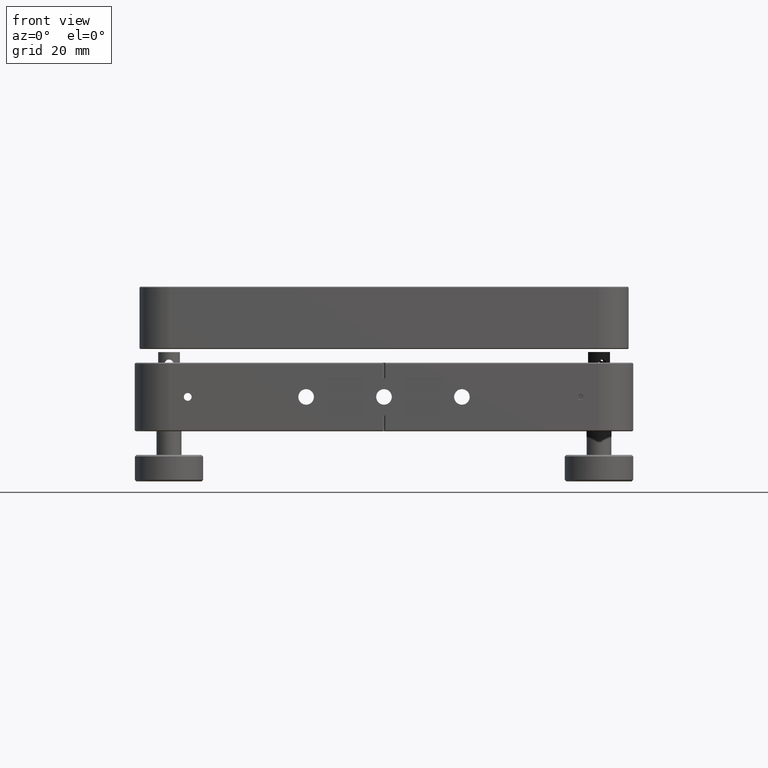
[diagram: clean part render]
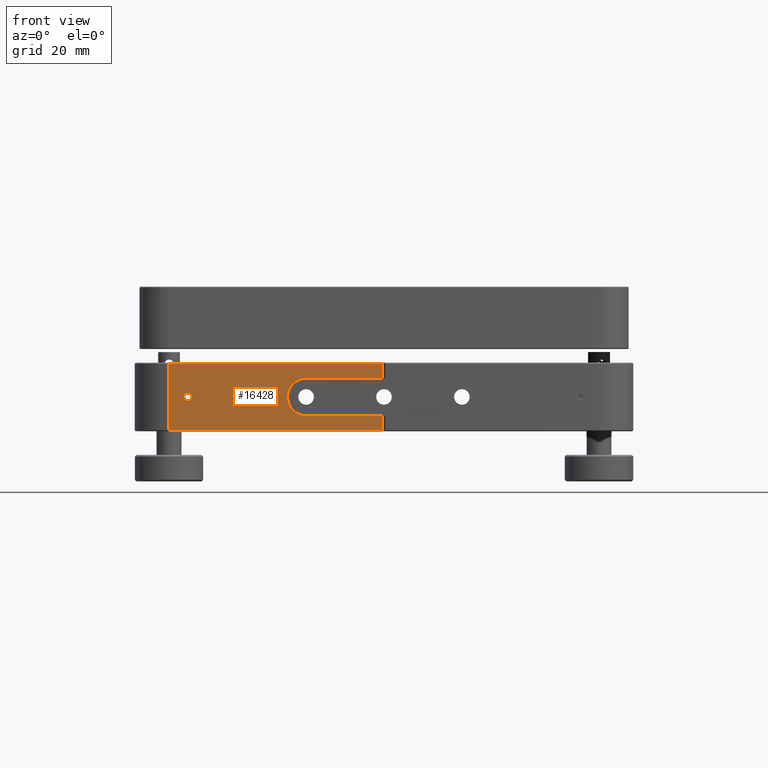
[diagram: same view with one face highlighted and labeled with its STEP entity id]
A machine part, front view. The second image highlights one B-rep face of the part: STEP entity #16428.
In plain terms, the highlighted planar face has unit normal (0, 1, 0).
Its self-contained STEP definition (entity closure, byte-faithful):
#104 = VERTEX_POINT ( 'NONE', #11621 ) ;
#155 = CARTESIAN_POINT ( 'NONE',  ( -0.5000000000000073275, -80.00000000000001421, 6.000000000000002665 ) ) ;
#356 = DIRECTION ( 'NONE',  ( 0.000000000000000000, -1.000000000000000000, 0.000000000000000000 ) ) ;
#378 = CARTESIAN_POINT ( 'NONE',  ( -25.00000000000000000, -80.00000000000001421, 6.000000000000007105 ) ) ;
#1159 = DIRECTION ( 'NONE',  ( -1.000000000000000000, 0.000000000000000000, -3.122502256758253263E-16 ) ) ;
#1169 = CIRCLE ( 'NONE', #10317, 1.249999999999994227 ) ;
#1380 = LINE ( 'NONE', #12304, #12335 ) ;
#1571 = ORIENTED_EDGE ( 'NONE', *, *, #12269, .F. ) ;
#1672 = VERTEX_POINT ( 'NONE', #2322 ) ;
#1827 = AXIS2_PLACEMENT_3D ( 'NONE', #11184, #356, #8418 ) ;
#1880 = CARTESIAN_POINT ( 'NONE',  ( 25.00000000000000711, -80.00000000000001421, -5.999999999999991118 ) ) ;
#1902 = EDGE_LOOP ( 'NONE', ( #10842, #7111 ) ) ;
#2030 = VECTOR ( 'NONE', #10208, 1000.000000000000000 ) ;
#2322 = CARTESIAN_POINT ( 'NONE',  ( -0.5000000000000129896, -80.00000000000001421, 10.69999999999997620 ) ) ;
#2408 = CIRCLE ( 'NONE', #8124, 1.249999999999994227 ) ;
#2660 = ORIENTED_EDGE ( 'NONE', *, *, #6331, .T. ) ;
#2737 = CARTESIAN_POINT ( 'NONE',  ( -68.99999999999998579, -80.00000000000001421, 10.69999999999997620 ) ) ;
#2879 = CARTESIAN_POINT ( 'NONE',  ( -68.99999999999998579, -80.00000000000001421, 10.70000000000003304 ) ) ;
#3104 = LINE ( 'NONE', #8307, #13803 ) ;
#3595 = CARTESIAN_POINT ( 'NONE',  ( -79.99999999999998579, -80.00000000000001421, -10.69999999999997620 ) ) ;
#3863 = CARTESIAN_POINT ( 'NONE',  ( -0.5000000000000129896, -80.00000000000001421, 11.00000000000000000 ) ) ;
#4146 = DIRECTION ( 'NONE',  ( 0.000000000000000000, -0.000000000000000000, 1.000000000000000000 ) ) ;
#4236 = DIRECTION ( 'NONE',  ( -0.000000000000000000, -0.000000000000000000, -1.000000000000000000 ) ) ;
#4387 = CIRCLE ( 'NONE', #1827, 6.000000000000000888 ) ;
#4670 = VERTEX_POINT ( 'NONE', #5199 ) ;
#4767 = EDGE_CURVE ( 'NONE', #1672, #7118, #5296, .T. ) ;
#4837 = LINE ( 'NONE', #3595, #2030 ) ;
#5132 = EDGE_LOOP ( 'NONE', ( #6913, #17246, #12588, #2660, #9675, #17139, #16022, #1571 ) ) ;
#5199 = CARTESIAN_POINT ( 'NONE',  ( -62.99999999999994316, -80.00000000000002842, -1.249999999999994449 ) ) ;
#5296 = LINE ( 'NONE', #3863, #16011 ) ;
#5341 = DIRECTION ( 'NONE',  ( -1.000000000000000000, 0.000000000000000000, 0.000000000000000000 ) ) ;
#5585 = FACE_OUTER_BOUND ( 'NONE', #5132, .T. ) ;
#5635 = EDGE_CURVE ( 'NONE', #13638, #4670, #1169, .T. ) ;
#5752 = DIRECTION ( 'NONE',  ( -0.000000000000000000, 1.000000000000000000, -0.000000000000000000 ) ) ;
#6106 = EDGE_CURVE ( 'NONE', #11108, #104, #1380, .T. ) ;
#6331 = EDGE_CURVE ( 'NONE', #16157, #104, #4837, .T. ) ;
#6363 = CARTESIAN_POINT ( 'NONE',  ( 24.99999999999999289, -80.00000000000001421, 6.000000000000010658 ) ) ;
#6913 = ORIENTED_EDGE ( 'NONE', *, *, #4767, .F. ) ;
#7111 = ORIENTED_EDGE ( 'NONE', *, *, #16701, .T. ) ;
#7118 = VERTEX_POINT ( 'NONE', #155 ) ;
#7347 = DIRECTION ( 'NONE',  ( 1.000000000000000000, -0.000000000000000000, 3.122502256758252277E-16 ) ) ;
#7388 = CARTESIAN_POINT ( 'NONE',  ( -0.5000000000000129896, -80.00000000000001421, -5.999999999999998224 ) ) ;
#7470 = CARTESIAN_POINT ( 'NONE',  ( -25.00000000000000000, -80.00000000000001421, -6.000000000000007105 ) ) ;
#7549 = VECTOR ( 'NONE', #5341, 1000.000000000000000 ) ;
#7903 = VECTOR ( 'NONE', #7347, 1000.000000000000000 ) ;
#7918 = VERTEX_POINT ( 'NONE', #7470 ) ;
#8099 = FACE_BOUND ( 'NONE', #1902, .T. ) ;
#8124 = AXIS2_PLACEMENT_3D ( 'NONE', #8440, #5752, #15317 ) ;
#8187 = CARTESIAN_POINT ( 'NONE',  ( -79.99999999999998579, -80.00000000000001421, 11.00000000000000000 ) ) ;
#8221 = CARTESIAN_POINT ( 'NONE',  ( -62.99999999999994316, -80.00000000000002842, 1.249999999999994227 ) ) ;
#8307 = CARTESIAN_POINT ( 'NONE',  ( -68.99999999999998579, -80.00000000000001421, 11.00000000000000000 ) ) ;
#8418 = DIRECTION ( 'NONE',  ( 0.000000000000000000, 0.000000000000000000, -1.000000000000000000 ) ) ;
#8440 = CARTESIAN_POINT ( 'NONE',  ( -62.99999999999994316, -80.00000000000002842, 0.000000000000000000 ) ) ;
#8651 = DIRECTION ( 'NONE',  ( -0.000000000000000000, 1.000000000000000000, -0.000000000000000000 ) ) ;
#8910 = DIRECTION ( 'NONE',  ( 0.000000000000000000, 0.000000000000000000, 1.000000000000000000 ) ) ;
#9396 = DIRECTION ( 'NONE',  ( -0.000000000000000000, -0.000000000000000000, -1.000000000000000000 ) ) ;
#9675 = ORIENTED_EDGE ( 'NONE', *, *, #6106, .F. ) ;
#10208 = DIRECTION ( 'NONE',  ( 1.000000000000000000, 0.000000000000000000, 0.000000000000000000 ) ) ;
#10317 = AXIS2_PLACEMENT_3D ( 'NONE', #13043, #8651, #8910 ) ;
#10650 = EDGE_CURVE ( 'NONE', #7918, #11108, #14142, .T. ) ;
#10842 = ORIENTED_EDGE ( 'NONE', *, *, #5635, .T. ) ;
#11108 = VERTEX_POINT ( 'NONE', #7388 ) ;
#11184 = CARTESIAN_POINT ( 'NONE',  ( -25.00000000000000000, -80.00000000000001421, 6.123233995736761352E-15 ) ) ;
#11621 = CARTESIAN_POINT ( 'NONE',  ( -0.5000000000000129896, -80.00000000000001421, -10.69999999999997620 ) ) ;
#12269 = EDGE_CURVE ( 'NONE', #7118, #15032, #14677, .T. ) ;
#12304 = CARTESIAN_POINT ( 'NONE',  ( -0.5000000000000129896, -80.00000000000001421, 11.00000000000000000 ) ) ;
#12335 = VECTOR ( 'NONE', #4236, 1000.000000000000000 ) ;
#12409 = AXIS2_PLACEMENT_3D ( 'NONE', #8187, #13708, #4146 ) ;
#12588 = ORIENTED_EDGE ( 'NONE', *, *, #13557, .T. ) ;
#13043 = CARTESIAN_POINT ( 'NONE',  ( -62.99999999999994316, -80.00000000000002842, 0.000000000000000000 ) ) ;
#13474 = LINE ( 'NONE', #2737, #7549 ) ;
#13546 = PLANE ( 'NONE',  #12409 ) ;
#13557 = EDGE_CURVE ( 'NONE', #16677, #16157, #3104, .T. ) ;
#13638 = VERTEX_POINT ( 'NONE', #8221 ) ;
#13666 = DIRECTION ( 'NONE',  ( -0.000000000000000000, 0.000000000000000000, -1.000000000000000000 ) ) ;
#13708 = DIRECTION ( 'NONE',  ( 0.000000000000000000, 1.000000000000000000, 0.000000000000000000 ) ) ;
#13803 = VECTOR ( 'NONE', #13666, 1000.000000000000000 ) ;
#14089 = VECTOR ( 'NONE', #1159, 1000.000000000000000 ) ;
#14142 = LINE ( 'NONE', #1880, #7903 ) ;
#14156 = EDGE_CURVE ( 'NONE', #1672, #16677, #13474, .T. ) ;
#14677 = LINE ( 'NONE', #6363, #14089 ) ;
#15032 = VERTEX_POINT ( 'NONE', #378 ) ;
#15317 = DIRECTION ( 'NONE',  ( 0.000000000000000000, 0.000000000000000000, 1.000000000000000000 ) ) ;
#15560 = EDGE_CURVE ( 'NONE', #15032, #7918, #4387, .T. ) ;
#16011 = VECTOR ( 'NONE', #9396, 1000.000000000000000 ) ;
#16022 = ORIENTED_EDGE ( 'NONE', *, *, #15560, .F. ) ;
#16050 = CARTESIAN_POINT ( 'NONE',  ( -68.99999999999998579, -80.00000000000001421, -10.69999999999997620 ) ) ;
#16157 = VERTEX_POINT ( 'NONE', #16050 ) ;
#16428 = ADVANCED_FACE ( 'NONE', ( #5585, #8099 ), #13546, .F. ) ;
#16677 = VERTEX_POINT ( 'NONE', #2879 ) ;
#16701 = EDGE_CURVE ( 'NONE', #4670, #13638, #2408, .T. ) ;
#17139 = ORIENTED_EDGE ( 'NONE', *, *, #10650, .F. ) ;
#17246 = ORIENTED_EDGE ( 'NONE', *, *, #14156, .T. ) ;